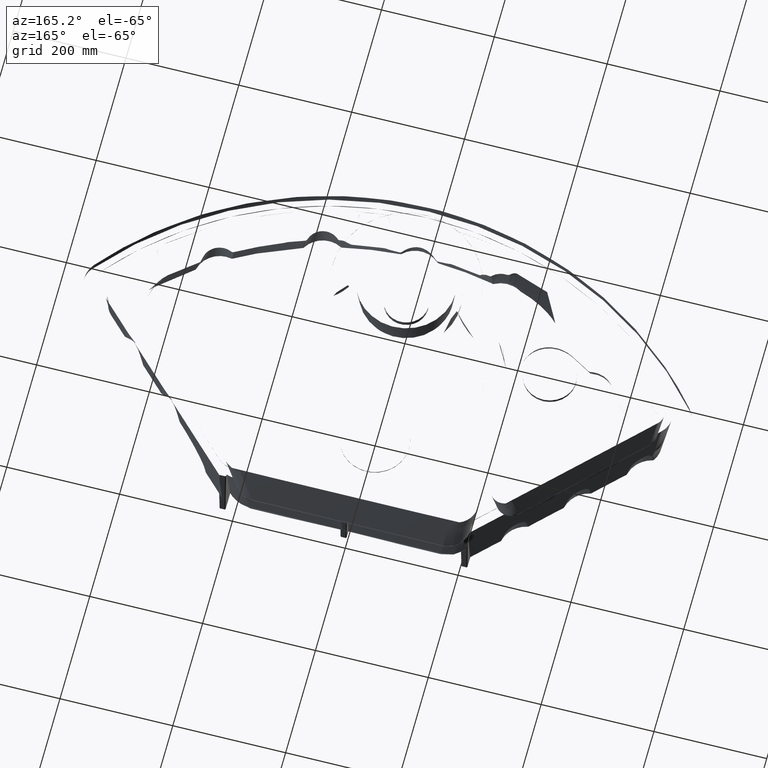
[diagram: clean part render]
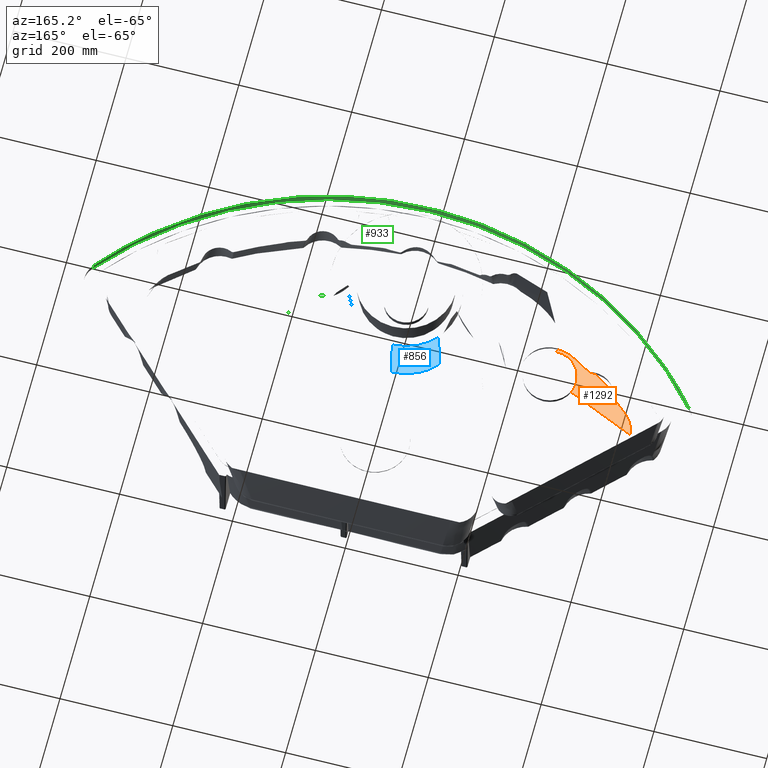
[diagram: same view with three faces highlighted in distinct colors, each labeled with its STEP entity id]
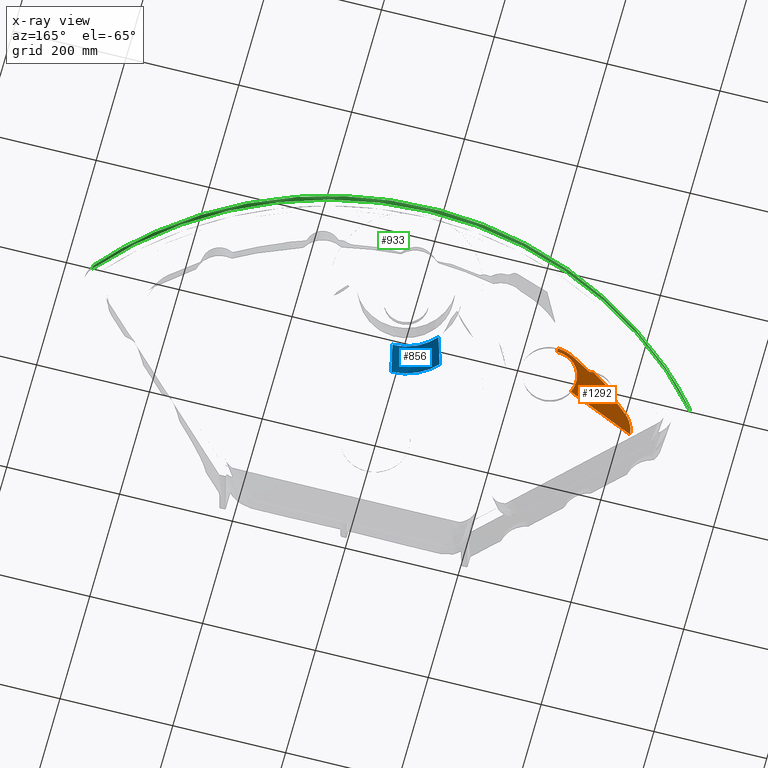
[diagram: x-ray of the same camera — body ghosted, the three highlighted faces saturated]
A machine part, auxiliary view with three faces highlighted in distinct colors.
The next image is the same camera in x-ray (body ghosted, the three faces saturated) — at least one of them is partly hidden behind the body in this view.
Their STEP definitions:

[orange] entity #1292 — the highlighted face is a freeform B-spline surface patch.
#301=B_SPLINE_SURFACE_WITH_KNOTS('',3,3,((#42504,#42505,#42506,#42507,#42508,
#42509,#42510,#42511,#42512,#42513),(#42514,#42515,#42516,#42517,#42518,
#42519,#42520,#42521,#42522,#42523),(#42524,#42525,#42526,#42527,#42528,
#42529,#42530,#42531,#42532,#42533),(#42534,#42535,#42536,#42537,#42538,
#42539,#42540,#42541,#42542,#42543),(#42544,#42545,#42546,#42547,#42548,
#42549,#42550,#42551,#42552,#42553),(#42554,#42555,#42556,#42557,#42558,
#42559,#42560,#42561,#42562,#42563),(#42564,#42565,#42566,#42567,#42568,
#42569,#42570,#42571,#42572,#42573),(#42574,#42575,#42576,#42577,#42578,
#42579,#42580,#42581,#42582,#42583),(#42584,#42585,#42586,#42587,#42588,
#42589,#42590,#42591,#42592,#42593),(#42594,#42595,#42596,#42597,#42598,
#42599,#42600,#42601,#42602,#42603),(#42604,#42605,#42606,#42607,#42608,
#42609,#42610,#42611,#42612,#42613),(#42614,#42615,#42616,#42617,#42618,
#42619,#42620,#42621,#42622,#42623),(#42624,#42625,#42626,#42627,#42628,
#42629,#42630,#42631,#42632,#42633),(#42634,#42635,#42636,#42637,#42638,
#42639,#42640,#42641,#42642,#42643),(#42644,#42645,#42646,#42647,#42648,
#42649,#42650,#42651,#42652,#42653),(#42654,#42655,#42656,#42657,#42658,
#42659,#42660,#42661,#42662,#42663),(#42664,#42665,#42666,#42667,#42668,
#42669,#42670,#42671,#42672,#42673),(#42674,#42675,#42676,#42677,#42678,
#42679,#42680,#42681,#42682,#42683),(#42684,#42685,#42686,#42687,#42688,
#42689,#42690,#42691,#42692,#42693),(#42694,#42695,#42696,#42697,#42698,
#42699,#42700,#42701,#42702,#42703),(#42704,#42705,#42706,#42707,#42708,
#42709,#42710,#42711,#42712,#42713),(#42714,#42715,#42716,#42717,#42718,
#42719,#42720,#42721,#42722,#42723),(#42724,#42725,#42726,#42727,#42728,
#42729,#42730,#42731,#42732,#42733),(#42734,#42735,#42736,#42737,#42738,
#42739,#42740,#42741,#42742,#42743),(#42744,#42745,#42746,#42747,#42748,
#42749,#42750,#42751,#42752,#42753),(#42754,#42755,#42756,#42757,#42758,
#42759,#42760,#42761,#42762,#42763),(#42764,#42765,#42766,#42767,#42768,
#42769,#42770,#42771,#42772,#42773),(#42774,#42775,#42776,#42777,#42778,
#42779,#42780,#42781,#42782,#42783),(#42784,#42785,#42786,#42787,#42788,
#42789,#42790,#42791,#42792,#42793),(#42794,#42795,#42796,#42797,#42798,
#42799,#42800,#42801,#42802,#42803),(#42804,#42805,#42806,#42807,#42808,
#42809,#42810,#42811,#42812,#42813)),.UNSPECIFIED.,.F.,.F.,.F.,(4,3,3,3,
3,3,3,3,3,3,4),(4,3,3,4),(0.,0.0625,0.125,0.25,0.375,0.5,0.75,0.875,0.9375,
0.96875,1.),(0.,0.25,0.5,1.),.UNSPECIFIED.);
#1292=ADVANCED_FACE('',(#1856),#301,.T.);
#1856=FACE_OUTER_BOUND('',#2394,.T.);
#2394=EDGE_LOOP('',(#4972,#4973,#4974,#4975,#4976,#4977,#4978,#4979,#4980,
#4981,#4982,#4983));
#4972=ORIENTED_EDGE('',*,*,#7400,.F.);
#4973=ORIENTED_EDGE('',*,*,#7401,.T.);
#4974=ORIENTED_EDGE('',*,*,#7402,.T.);
#4975=ORIENTED_EDGE('',*,*,#7403,.F.);
#4976=ORIENTED_EDGE('',*,*,#7404,.F.);
#4977=ORIENTED_EDGE('',*,*,#7405,.F.);
#4978=ORIENTED_EDGE('',*,*,#7406,.T.);
#4979=ORIENTED_EDGE('',*,*,#7407,.T.);
#4980=ORIENTED_EDGE('',*,*,#7408,.F.);
#4981=ORIENTED_EDGE('',*,*,#7380,.T.);
#4982=ORIENTED_EDGE('',*,*,#7393,.F.);
#4983=ORIENTED_EDGE('',*,*,#7409,.F.);
#5920=VERTEX_POINT('',#40452);
#5929=VERTEX_POINT('',#41948);
#5930=VERTEX_POINT('',#41955);
#5944=VERTEX_POINT('',#42436);
#5945=VERTEX_POINT('',#42437);
#5946=VERTEX_POINT('',#42455);
#5947=VERTEX_POINT('',#42460);
#5948=VERTEX_POINT('',#42465);
#5949=VERTEX_POINT('',#42470);
#5950=VERTEX_POINT('',#42475);
#5951=VERTEX_POINT('',#42480);
#5952=VERTEX_POINT('',#42485);
#7380=EDGE_CURVE('',#5930,#5929,#8678,.T.);
#7393=EDGE_CURVE('',#5920,#5929,#8691,.T.);
#7400=EDGE_CURVE('',#5944,#5945,#8696,.T.);
#7401=EDGE_CURVE('',#5944,#5946,#8697,.T.);
#7402=EDGE_CURVE('',#5946,#5947,#8698,.T.);
#7403=EDGE_CURVE('',#5948,#5947,#8699,.T.);
#7404=EDGE_CURVE('',#5949,#5948,#8700,.T.);
#7405=EDGE_CURVE('',#5950,#5949,#8701,.T.);
#7406=EDGE_CURVE('',#5950,#5951,#8702,.T.);
#7407=EDGE_CURVE('',#5951,#5952,#8703,.T.);
#7408=EDGE_CURVE('',#5930,#5952,#8704,.T.);
#7409=EDGE_CURVE('',#5945,#5920,#8705,.T.);
#8678=B_SPLINE_CURVE_WITH_KNOTS('',3,(#41949,#41950,#41951,#41952,#41953,
#41954),.UNSPECIFIED.,.F.,.F.,(4,2,4),(0.,0.5,1.),.UNSPECIFIED.);
#8691=B_SPLINE_CURVE_WITH_KNOTS('',3,(#42143,#42144,#42145,#42146,#42147,
#42148,#42149,#42150,#42151,#42152,#42153,#42154,#42155,#42156,#42157,#42158,
#42159,#42160,#42161,#42162,#42163,#42164,#42165,#42166,#42167,#42168,#42169,
#42170),.UNSPECIFIED.,.F.,.F.,(4,2,2,2,2,2,1,1,2,2,2,2,2,2,4),(0.,0.125000000000173,
0.250000000000346,0.375000000000519,0.500000000000692,0.501953125000688,
0.503906250000684,0.507812500000678,0.515625000000667,0.531250000000645,
0.562500000000603,0.625000000000518,0.750000000000345,0.875000000000173,
1.),.UNSPECIFIED.);
#8696=B_SPLINE_CURVE_WITH_KNOTS('',3,(#42430,#42431,#42432,#42433,#42434,
#42435),.UNSPECIFIED.,.F.,.F.,(4,2,4),(0.,0.5,1.),.UNSPECIFIED.);
#8697=B_SPLINE_CURVE_WITH_KNOTS('',3,(#42438,#42439,#42440,#42441,#42442,
#42443,#42444,#42445,#42446,#42447,#42448,#42449,#42450,#42451,#42452,#42453,
#42454),.UNSPECIFIED.,.F.,.F.,(4,2,2,2,2,1,2,2,4),(0.,0.125000000000008,
0.250000000000016,0.375000000000024,0.43750000000003,0.468750000000032,0.484375000000032,
0.500000000000032,1.),.UNSPECIFIED.);
#8698=B_SPLINE_CURVE_WITH_KNOTS('',3,(#42456,#42457,#42458,#42459),.UNSPECIFIED.,
 .F.,.F.,(4,4),(0.,1.),.UNSPECIFIED.);
#8699=B_SPLINE_CURVE_WITH_KNOTS('',3,(#42461,#42462,#42463,#42464),.UNSPECIFIED.,
 .F.,.F.,(4,4),(0.,1.),.UNSPECIFIED.);
#8700=B_SPLINE_CURVE_WITH_KNOTS('',3,(#42466,#42467,#42468,#42469),.UNSPECIFIED.,
 .F.,.F.,(4,4),(0.,1.),.UNSPECIFIED.);
#8701=B_SPLINE_CURVE_WITH_KNOTS('',3,(#42471,#42472,#42473,#42474),.UNSPECIFIED.,
 .F.,.F.,(4,4),(0.,1.),.UNSPECIFIED.);
#8702=B_SPLINE_CURVE_WITH_KNOTS('',3,(#42476,#42477,#42478,#42479),.UNSPECIFIED.,
 .F.,.F.,(4,4),(0.,1.),.UNSPECIFIED.);
#8703=B_SPLINE_CURVE_WITH_KNOTS('',3,(#42481,#42482,#42483,#42484),.UNSPECIFIED.,
 .F.,.F.,(4,4),(0.,1.),.UNSPECIFIED.);
#8704=B_SPLINE_CURVE_WITH_KNOTS('',3,(#42486,#42487,#42488,#42489,#42490,
#42491,#42492,#42493,#42494,#42495,#42496,#42497,#42498,#42499),.UNSPECIFIED.,
 .F.,.F.,(4,2,2,2,2,2,4),(0.,0.250000000000006,0.375000000000009,0.437500000000011,
0.468750000000011,0.500000000000011,1.),.UNSPECIFIED.);
#8705=B_SPLINE_CURVE_WITH_KNOTS('',3,(#42500,#42501,#42502,#42503),.UNSPECIFIED.,
 .F.,.F.,(4,4),(0.,1.),.UNSPECIFIED.);
#40452=CARTESIAN_POINT('',(-265.656546483442,214.567353689977,-140.228930710284));
#41948=CARTESIAN_POINT('',(-307.789119636021,147.796596819343,-140.214641777807));
#41949=CARTESIAN_POINT('',(-427.679678508203,92.4015824124142,-133.746235387042));
#41950=CARTESIAN_POINT('',(-407.685713559118,101.607568812966,-134.824108262825));
#41951=CARTESIAN_POINT('',(-387.692212600059,110.814560843453,-135.902008381039));
#41952=CARTESIAN_POINT('',(-347.717292309931,129.254774588015,-138.058137880918));
#41953=CARTESIAN_POINT('',(-327.727829227723,138.470460423162,-139.136767495024));
#41954=CARTESIAN_POINT('',(-307.789279244703,147.796931640055,-140.214641957729));
#41955=CARTESIAN_POINT('',(-427.679706867181,92.4013015024234,-133.74622416294));
#42143=CARTESIAN_POINT('',(-265.658970892072,214.567354514697,-140.228926044413));
#42144=CARTESIAN_POINT('',(-273.095672421104,214.565957397353,-140.22308957368));
#42145=CARTESIAN_POINT('',(-279.572929376068,212.80357332363,-140.21798290712));
#42146=CARTESIAN_POINT('',(-289.935644756436,208.155223753842,-140.209229182343));
#42147=CARTESIAN_POINT('',(-293.862107017241,205.284167229117,-140.205582124128));
#42148=CARTESIAN_POINT('',(-299.705474323629,200.054973035898,-140.199747616041));
#42149=CARTESIAN_POINT('',(-301.646474109606,197.687992286876,-140.19756016617));
#42150=CARTESIAN_POINT('',(-304.248039492136,194.232511104114,-140.194644874772));
#42151=CARTESIAN_POINT('',(-304.918026178757,193.133975846683,-140.193917033246));
#42152=CARTESIAN_POINT('',(-305.137205329729,192.786469795428,-140.193919026558));
#42153=CARTESIAN_POINT('',(-305.180848986335,192.717156273499,-140.193919672876));
#42154=CARTESIAN_POINT('',(-305.227919164356,192.642054793045,-140.193921098589));
#42155=CARTESIAN_POINT('',(-305.298577907717,192.528960409569,-140.193923985884));
#42156=CARTESIAN_POINT('',(-305.463800328891,192.261968921837,-140.193935963996));
#42157=CARTESIAN_POINT('',(-305.605945946599,192.027764618078,-140.193955215674));
#42158=CARTESIAN_POINT('',(-305.890727211604,191.552132279269,-140.194005698664));
#42159=CARTESIAN_POINT('',(-306.081237207875,191.225411606637,-140.194055326836));
#42160=CARTESIAN_POINT('',(-306.652953001055,190.215702678613,-140.194252129885));
#42161=CARTESIAN_POINT('',(-307.034386461356,189.503149560129,-140.194447223296));
#42162=CARTESIAN_POINT('',(-308.163850441411,187.242595574797,-140.195224177665));
#42163=CARTESIAN_POINT('',(-308.897567443529,185.57113379341,-140.19599771276));
#42164=CARTESIAN_POINT('',(-310.892297079537,180.040469756275,-140.19908501459));
#42165=CARTESIAN_POINT('',(-311.955076512676,175.648720726112,-140.20216547787));
#42166=CARTESIAN_POINT('',(-312.547172709725,165.6260666913,-140.21037092855));
#42167=CARTESIAN_POINT('',(-312.011179398135,161.158217429095,-140.213104703459));
#42168=CARTESIAN_POINT('',(-310.239737009565,153.520974932306,-140.215895954966));
#42169=CARTESIAN_POINT('',(-309.008147161568,150.353864468894,-140.215943164471));
#42170=CARTESIAN_POINT('',(-307.789279244703,147.796931640055,-140.214641957729));
#42430=CARTESIAN_POINT('',(-292.391774514897,213.382670713023,-139.840785037567));
#42431=CARTESIAN_POINT('',(-288.977732035672,215.255028945492,-139.871547226263));
#42432=CARTESIAN_POINT('',(-285.066743069542,217.031216930924,-139.900263105513));
#42433=CARTESIAN_POINT('',(-276.172888910149,219.815955182479,-139.952877240151));
#42434=CARTESIAN_POINT('',(-271.226786216189,220.840694112957,-139.978901155117));
#42435=CARTESIAN_POINT('',(-265.713737075874,221.093014346736,-139.995398371725));
#42436=CARTESIAN_POINT('',(-292.391775222417,213.382673724984,-139.840784866741));
#42437=CARTESIAN_POINT('',(-265.713737051134,221.093014347869,-139.995398371799));
#42438=CARTESIAN_POINT('',(-292.391775929938,213.382676736946,-139.840784695915));
#42439=CARTESIAN_POINT('',(-293.960998600307,212.522168011987,-139.82664050304));
#42440=CARTESIAN_POINT('',(-295.478279316929,211.680513636874,-139.808263562284));
#42441=CARTESIAN_POINT('',(-298.434207778752,210.020897342974,-139.763851185516));
#42442=CARTESIAN_POINT('',(-299.822188163552,209.232040080923,-139.738885936136));
#42443=CARTESIAN_POINT('',(-302.757093871433,207.547570499227,-139.677747998334));
#42444=CARTESIAN_POINT('',(-304.214098336805,206.70260392894,-139.643189859169));
#42445=CARTESIAN_POINT('',(-306.407793477134,205.415658048812,-139.586056439797));
#42446=CARTESIAN_POINT('',(-307.14040302348,204.983452146855,-139.566126967906));
#42447=CARTESIAN_POINT('',(-308.244455784282,204.328584546653,-139.534966389827));
#42448=CARTESIAN_POINT('',(-308.797767460521,203.999512949842,-139.519069217882));
#42449=CARTESIAN_POINT('',(-309.35358740059,203.66767780391,-139.502705471803));
#42450=CARTESIAN_POINT('',(-309.724756049788,203.445807207412,-139.49169340395));
#42451=CARTESIAN_POINT('',(-309.935575625561,203.319612010305,-139.485385176497));
#42452=CARTESIAN_POINT('',(-315.212688182225,200.157466324669,-139.326470495381));
#42453=CARTESIAN_POINT('',(-320.75079870029,196.742279845687,-139.131583935426));
#42454=CARTESIAN_POINT('',(-327.39612238466,192.439981358982,-138.888618166196));
#42455=CARTESIAN_POINT('',(-327.396121103124,192.439979372288,-138.88861829435));
#42456=CARTESIAN_POINT('',(-327.396119821589,192.439977385594,-138.888618422505));
#42457=CARTESIAN_POINT('',(-328.438594789405,191.765117618662,-138.850501900075));
#42458=CARTESIAN_POINT('',(-329.687099639624,191.508962209833,-138.788690339611));
#42459=CARTESIAN_POINT('',(-330.927969621622,191.733785039025,-138.714822881204));
#42460=CARTESIAN_POINT('',(-330.937461599081,191.735544570743,-138.714256758888));
#42461=CARTESIAN_POINT('',(-336.413874828756,192.386544405647,-138.401614055303));
#42462=CARTESIAN_POINT('',(-334.524744620312,192.286679267034,-138.504867487854));
#42463=CARTESIAN_POINT('',(-332.705839356114,192.063201292498,-138.608795917682));
#42464=CARTESIAN_POINT('',(-330.94695357654,191.737304102462,-138.713690636573));
#42465=CARTESIAN_POINT('',(-336.413950603607,192.386074631407,-138.40154160622));
#42466=CARTESIAN_POINT('',(-379.126113700221,161.817475962388,-136.72360288688));
#42467=CARTESIAN_POINT('',(-365.330575444873,172.600257355997,-137.319128022545));
#42468=CARTESIAN_POINT('',(-351.072287086248,182.790878334201,-137.881396292931));
#42469=CARTESIAN_POINT('',(-336.414026353386,192.385604855837,-138.401469158508));
#42470=CARTESIAN_POINT('',(-379.120783906457,161.819602893532,-136.72419931194));
#42471=CARTESIAN_POINT('',(-380.35806257731,155.69596588517,-136.715850174097));
#42472=CARTESIAN_POINT('',(-380.097058848854,157.783056418479,-136.713985343419));
#42473=CARTESIAN_POINT('',(-379.675634233926,159.833544565517,-136.716933627761));
#42474=CARTESIAN_POINT('',(-379.115454119142,161.821729801704,-136.724795736913));
#42475=CARTESIAN_POINT('',(-380.35810440525,155.695971121641,-136.715847991195));
#42476=CARTESIAN_POINT('',(-380.35814623319,155.695976358112,-136.715845808293));
#42477=CARTESIAN_POINT('',(-380.515332389839,154.43492618979,-136.716999041399));
#42478=CARTESIAN_POINT('',(-381.139727077571,153.281482776126,-136.691954532315));
#42479=CARTESIAN_POINT('',(-382.122071517452,152.475375777453,-136.646302067384));
#42480=CARTESIAN_POINT('',(-382.122075021175,152.475373057245,-136.646301903701));
#42481=CARTESIAN_POINT('',(-382.122078524898,152.475370337036,-136.646301740019));
#42482=CARTESIAN_POINT('',(-389.952269349395,146.050004373954,-136.282409217721));
#42483=CARTESIAN_POINT('',(-398.959757052675,138.350512897025,-135.844226327784));
#42484=CARTESIAN_POINT('',(-409.252091217321,128.814955611901,-135.285824037037));
#42485=CARTESIAN_POINT('',(-409.25209433133,128.814958980606,-135.285823908639));
#42486=CARTESIAN_POINT('',(-427.679678491276,92.4015825800626,-133.746235393738));
#42487=CARTESIAN_POINT('',(-427.308744078451,96.0754852480829,-133.89297777786));
#42488=CARTESIAN_POINT('',(-426.572837840615,99.5946789123415,-134.024436876417));
#42489=CARTESIAN_POINT('',(-425.064866036599,104.579670676074,-134.211470067665));
#42490=CARTESIAN_POINT('',(-424.494521226913,106.193102369802,-134.272077058897));
#42491=CARTESIAN_POINT('',(-423.549734784895,108.535728632397,-134.361407313702));
#42492=CARTESIAN_POINT('',(-423.219898623454,109.303685824348,-134.390918735408));
#42493=CARTESIAN_POINT('',(-422.704095838477,110.435696314322,-134.43490009806));
#42494=CARTESIAN_POINT('',(-422.528652070348,110.809713131779,-134.449512818142));
#42495=CARTESIAN_POINT('',(-422.170947494482,111.551025760799,-134.478660251197));
#42496=CARTESIAN_POINT('',(-422.003132617614,111.889994031698,-134.492065901161));
#42497=CARTESIAN_POINT('',(-418.602796475161,118.557832169887,-134.757828606388));
#42498=CARTESIAN_POINT('',(-414.329862966932,124.110336146363,-135.010332303186));
#42499=CARTESIAN_POINT('',(-409.25209744534,128.814962349312,-135.285823780241));
#42500=CARTESIAN_POINT('',(-265.713737026395,221.093014349001,-139.995398371873));
#42501=CARTESIAN_POINT('',(-265.69759141405,218.917795306555,-140.073266159773));
#42502=CARTESIAN_POINT('',(-265.6794817824,216.742575646844,-140.151116687937));
#42503=CARTESIAN_POINT('',(-265.658970892072,214.567354514697,-140.228926044413));
#42504=CARTESIAN_POINT('',(-306.949902319907,148.189669087443,-140.26001959409));
#42505=CARTESIAN_POINT('',(-317.104586999545,143.437027684794,-139.711033364475));
#42506=CARTESIAN_POINT('',(-327.275725405787,138.720203721556,-139.161678298654));
#42507=CARTESIAN_POINT('',(-337.450264199471,134.010756293978,-138.612465724299));
#42508=CARTESIAN_POINT('',(-347.624802993155,129.301308866401,-138.063253149943));
#42509=CARTESIAN_POINT('',(-357.803909635816,124.601786875067,-137.514092874263));
#42510=CARTESIAN_POINT('',(-367.984552282366,119.905598772589,-136.964981587929));
#42511=CARTESIAN_POINT('',(-388.345837575465,110.513222567633,-135.866759015259));
#42512=CARTESIAN_POINT('',(-408.713316364301,101.134292588771,-134.76870603498));
#42513=CARTESIAN_POINT('',(-429.081212569177,91.756267133492,-133.670678963128));
#42514=CARTESIAN_POINT('',(-307.763460173631,149.930168626321,-140.260797322433));
#42515=CARTESIAN_POINT('',(-317.766456086224,145.658697320075,-139.738722804236));
#42516=CARTESIAN_POINT('',(-327.776900370683,141.406533173978,-139.215967189527));
#42517=CARTESIAN_POINT('',(-337.788910725982,137.158594017953,-138.692756862719));
#42518=CARTESIAN_POINT('',(-347.800921081281,132.910654861927,-138.169546535912));
#42519=CARTESIAN_POINT('',(-357.815009094314,128.668256700495,-137.645874859941));
#42520=CARTESIAN_POINT('',(-367.829771050297,124.42780090703,-137.121921313038));
#42521=CARTESIAN_POINT('',(-387.859294962261,115.9468893201,-136.074014219232));
#42522=CARTESIAN_POINT('',(-407.891528030432,107.473785285548,-135.024977423806));
#42523=CARTESIAN_POINT('',(-427.923785944923,99.0014895246245,-133.976205798523));
#42524=CARTESIAN_POINT('',(-308.474098562617,151.717571607296,-140.261109206424));
#42525=CARTESIAN_POINT('',(-318.289070731594,147.909594569257,-139.758785291864));
#42526=CARTESIAN_POINT('',(-328.106045804333,144.108256813993,-139.255749127726));
#42527=CARTESIAN_POINT('',(-337.923404436287,140.308476799225,-138.752178540044));
#42528=CARTESIAN_POINT('',(-347.740763068242,136.508696784458,-138.248607952363));
#42529=CARTESIAN_POINT('',(-357.558651562039,132.710928461183,-137.744506695501));
#42530=CARTESIAN_POINT('',(-367.376703726557,128.913982447268,-137.240069059685));
#42531=CARTESIAN_POINT('',(-387.012808055593,121.320090419438,-136.231193788052));
#42532=CARTESIAN_POINT('',(-406.649573450559,113.729507110855,-135.220974355212));
#42533=CARTESIAN_POINT('',(-426.286373060427,106.139881643789,-134.210946158734));
#42534=CARTESIAN_POINT('',(-309.075994421343,153.541081434572,-140.26111964559));
#42535=CARTESIAN_POINT('',(-318.686754458547,150.18332817461,-139.774127541799));
#42536=CARTESIAN_POINT('',(-328.295860237078,146.821198411776,-139.286803187716));
#42537=CARTESIAN_POINT('',(-337.904674366009,143.458520684443,-138.799218967288));
#42538=CARTESIAN_POINT('',(-347.51348849494,140.09584295711,-138.31163474686));
#42539=CARTESIAN_POINT('',(-357.121890746764,136.732273822042,-137.823790146935));
#42540=CARTESIAN_POINT('',(-366.730208976027,133.368685282551,-137.33575728864));
#42541=CARTESIAN_POINT('',(-385.946845434554,126.64150820357,-136.35969157205));
#42542=CARTESIAN_POINT('',(-405.163140980588,119.914239785921,-135.382872722918));
#42543=CARTESIAN_POINT('',(-424.379801185632,113.188375930722,-134.405888388064));
#42544=CARTESIAN_POINT('',(-309.677890280068,155.364591261848,-140.261130084757));
#42545=CARTESIAN_POINT('',(-319.0844381855,152.457061779963,-139.789469791735));
#42546=CARTESIAN_POINT('',(-328.485674669823,149.53414000956,-139.317857247705));
#42547=CARTESIAN_POINT('',(-337.885944295731,146.60856456966,-138.846259394532));
#42548=CARTESIAN_POINT('',(-347.286213921638,143.682989129761,-138.374661541358));
#42549=CARTESIAN_POINT('',(-356.685129931488,140.753619182901,-137.903073598369));
#42550=CARTESIAN_POINT('',(-366.083714225497,137.823388117835,-137.431445517595));
#42551=CARTESIAN_POINT('',(-384.880882813515,131.962925987703,-136.488189356048));
#42552=CARTESIAN_POINT('',(-403.676708510616,126.098972460988,-135.544771090625));
#42553=CARTESIAN_POINT('',(-422.473229310837,120.236870217655,-134.600830617394));
#42554=CARTESIAN_POINT('',(-310.171184411228,157.224114405541,-140.260826514349));
#42555=CARTESIAN_POINT('',(-319.356982201905,154.755623335946,-139.799960161211));
#42556=CARTESIAN_POINT('',(-328.535411326386,152.261518517361,-139.339914540971));
#42557=CARTESIAN_POINT('',(-337.712635102583,149.762983694886,-138.880522213349));
#42558=CARTESIAN_POINT('',(-346.889858878781,147.264448872411,-138.421129885727));
#42559=CARTESIAN_POINT('',(-356.065317296758,144.759562593425,-137.962361095057));
#42560=CARTESIAN_POINT('',(-365.24042446302,142.253138303058,-137.503905179617));
#42561=CARTESIAN_POINT('',(-383.590638795545,137.240289722322,-136.586993348737));
#42562=CARTESIAN_POINT('',(-401.939419179205,132.221195939361,-135.671323831822));
#42563=CARTESIAN_POINT('',(-420.289508230945,127.204584699564,-134.754493234081));
#42564=CARTESIAN_POINT('',(-310.550372475516,159.107777821916,-140.260250024323));
#42565=CARTESIAN_POINT('',(-319.50707341039,157.068034692399,-139.807069446446));
#42566=CARTESIAN_POINT('',(-328.455919873089,154.993825294883,-139.35584479309));
#42567=CARTESIAN_POINT('',(-337.403705464656,152.913981643793,-138.90617205301));
#42568=CARTESIAN_POINT('',(-346.351491056222,150.834137992703,-138.456499312929));
#42569=CARTESIAN_POINT('',(-355.297584045015,148.745975453563,-138.008320711702));
#42570=CARTESIAN_POINT('',(-364.243502068915,146.655858646102,-137.560958134621));
#42571=CARTESIAN_POINT('',(-382.135338116715,142.47562503118,-136.666232980459));
#42572=CARTESIAN_POINT('',(-400.026435207902,138.287411502167,-135.774755984561));
#42573=CARTESIAN_POINT('',(-417.919668952053,134.102533810099,-134.881251915946));
#42574=CARTESIAN_POINT('',(-311.308748604093,162.875104654665,-140.25909704427));
#42575=CARTESIAN_POINT('',(-319.807255827361,161.692857405304,-139.821288016916));
#42576=CARTESIAN_POINT('',(-328.296936966494,160.458438849925,-139.387705297328));
#42577=CARTESIAN_POINT('',(-336.7858461888,159.215977541606,-138.957471732331));
#42578=CARTESIAN_POINT('',(-345.274755411106,157.973516233287,-138.527238167334));
#42579=CARTESIAN_POINT('',(-353.762117541531,156.718801173838,-138.100239944992));
#42580=CARTESIAN_POINT('',(-362.249657280707,155.46129933219,-137.675064044629));
#42581=CARTESIAN_POINT('',(-379.224736759057,152.946295648896,-136.824712243903));
#42582=CARTESIAN_POINT('',(-396.200467265296,150.41984262778,-135.981620290037));
#42583=CARTESIAN_POINT('',(-413.179990394269,147.898432031169,-135.134769279677));
#42584=CARTESIAN_POINT('',(-311.611394288122,166.737858092133,-140.25680885522));
#42585=CARTESIAN_POINT('',(-319.620818441008,166.378815681681,-139.822173390794));
#42586=CARTESIAN_POINT('',(-327.626458060514,165.952017141603,-139.395451939536));
#42587=CARTESIAN_POINT('',(-335.633013101677,165.516480866211,-138.974928549297));
#42588=CARTESIAN_POINT('',(-343.639568142841,165.080944590819,-138.554405159057));
#42589=CARTESIAN_POINT('',(-351.646520671567,164.630708938042,-138.139887912753));
#42590=CARTESIAN_POINT('',(-359.654712060432,164.177575910324,-137.728800763046));
#42591=CARTESIAN_POINT('',(-375.671094838161,163.271309854887,-136.906626463632));
#42592=CARTESIAN_POINT('',(-391.69237368988,162.352896675648,-136.098132607254));
#42593=CARTESIAN_POINT('',(-407.71985782883,161.441818102058,-135.283237163077));
#42594=CARTESIAN_POINT('',(-311.435547644953,170.587896089069,-140.253673047519));
#42595=CARTESIAN_POINT('',(-318.956111991262,171.027166893371,-139.816194574905));
#42596=CARTESIAN_POINT('',(-326.482430779946,171.391377474654,-139.390948503912));
#42597=CARTESIAN_POINT('',(-334.011556543279,171.74774661274,-138.975115267348));
#42598=CARTESIAN_POINT('',(-341.540682306612,172.104115750827,-138.559282030784));
#42599=CARTESIAN_POINT('',(-349.072914826368,172.445508774925,-138.152622769144));
#42600=CARTESIAN_POINT('',(-356.607649108043,172.784547545949,-137.751254976832));
#42601=CARTESIAN_POINT('',(-371.677117671393,173.462625087998,-136.948519392208));
#42602=CARTESIAN_POINT('',(-386.756623935904,174.130532426058,-136.166914443046));
#42603=CARTESIAN_POINT('',(-401.84494300413,174.808080942133,-135.375879504245));
#42604=CARTESIAN_POINT('',(-311.259701001785,174.437934086004,-140.250537239818));
#42605=CARTESIAN_POINT('',(-318.291405541516,175.675518105061,-139.810215759016));
#42606=CARTESIAN_POINT('',(-325.338403499377,176.830737807704,-139.386445068288));
#42607=CARTESIAN_POINT('',(-332.39009998488,177.97901235927,-138.975301985399));
#42608=CARTESIAN_POINT('',(-339.441796470383,179.127286910835,-138.564158902511));
#42609=CARTESIAN_POINT('',(-346.49930898117,180.260308611807,-138.165357625536));
#42610=CARTESIAN_POINT('',(-353.560586155655,181.391519181574,-137.773709190618));
#42611=CARTESIAN_POINT('',(-367.683140504626,183.653940321109,-136.990412320783));
#42612=CARTESIAN_POINT('',(-381.820874181927,185.908168176468,-136.235696278839));
#42613=CARTESIAN_POINT('',(-395.97002817943,188.174343782208,-135.468521845413));
#42614=CARTESIAN_POINT('',(-310.604408071102,178.274021444057,-140.246496954474));
#42615=CARTESIAN_POINT('',(-317.146487694385,180.285134572857,-139.797240287257));
#42616=CARTESIAN_POINT('',(-323.718048769262,182.215391706019,-139.369378568161));
#42617=CARTESIAN_POINT('',(-330.296279893378,184.140906106732,-138.957731630083));
#42618=CARTESIAN_POINT('',(-336.874511017493,186.066420507445,-138.546084692005));
#42619=CARTESIAN_POINT('',(-343.461983631723,187.978455834577,-138.150338937522));
#42620=CARTESIAN_POINT('',(-350.054666274901,189.88979176009,-137.763866900528));
#42621=CARTESIAN_POINT('',(-363.240031561256,193.712463611115,-136.99092282654));
#42622=CARTESIAN_POINT('',(-376.446544772127,197.531290523156,-136.255057261066));
#42623=CARTESIAN_POINT('',(-389.667280902575,201.364310296859,-135.503324255301));
#42624=CARTESIAN_POINT('',(-309.464375557766,181.970099536491,-140.24319444462));
#42625=CARTESIAN_POINT('',(-315.540940710497,184.743216977298,-139.782161623651));
#42626=CARTESIAN_POINT('',(-321.654535624009,187.447687545186,-139.347351459195));
#42627=CARTESIAN_POINT('',(-327.776082275652,190.149645968799,-138.932215434644));
#42628=CARTESIAN_POINT('',(-333.897628927295,192.851604392412,-138.517079410093));
#42629=CARTESIAN_POINT('',(-340.03046741151,195.543357234296,-138.121321716518));
#42630=CARTESIAN_POINT('',(-346.16958554861,198.235733470347,-137.736927317426));
#42631=CARTESIAN_POINT('',(-358.447821822809,203.620485942449,-136.968138519243));
#42632=CARTESIAN_POINT('',(-370.751583986292,209.006799775365,-136.244804171856));
#42633=CARTESIAN_POINT('',(-383.07232426158,214.409070008941,-135.502322890642));
#42634=CARTESIAN_POINT('',(-308.324343044431,185.666177628925,-140.239891934765));
#42635=CARTESIAN_POINT('',(-313.935393726609,189.201299381738,-139.767082960045));
#42636=CARTESIAN_POINT('',(-319.591022478756,192.679983384353,-139.325324350229));
#42637=CARTESIAN_POINT('',(-325.255884657926,196.158385830866,-138.906699239205));
#42638=CARTESIAN_POINT('',(-330.920746837096,199.636788277379,-138.488074128181));
#42639=CARTESIAN_POINT('',(-336.598951191297,203.108258634015,-138.092304495513));
#42640=CARTESIAN_POINT('',(-342.284504822318,206.581675180604,-137.709987734324));
#42641=CARTESIAN_POINT('',(-353.655612084361,213.528508273782,-136.945354211946));
#42642=CARTESIAN_POINT('',(-365.056623200458,220.482309027574,-136.234551082645));
#42643=CARTESIAN_POINT('',(-376.477367620586,227.453829721022,-135.501321525983));
#42644=CARTESIAN_POINT('',(-306.698026914301,189.217895407,-140.237575165044));
#42645=CARTESIAN_POINT('',(-311.868578261879,193.506039113979,-139.74994589503));
#42646=CARTESIAN_POINT('',(-317.08305392548,197.758800712159,-139.298263645565));
#42647=CARTESIAN_POINT('',(-322.307569241653,202.013412047967,-138.873063457129));
#42648=CARTESIAN_POINT('',(-327.532084557826,206.268023383774,-138.447863268693));
#42649=CARTESIAN_POINT('',(-332.770527622077,210.520139952344,-138.048934657569));
#42650=CARTESIAN_POINT('',(-338.017028493337,214.775657117667,-137.665521783369));
#42651=CARTESIAN_POINT('',(-348.510030235857,223.286691448313,-136.898696034968));
#42652=CARTESIAN_POINT('',(-359.035737498395,231.810806312246,-136.193974586131));
#42653=CARTESIAN_POINT('',(-369.583918395857,240.353914645982,-135.463674150782));
#42654=CARTESIAN_POINT('',(-304.630543285259,192.4940851267,-140.237526473327));
#42655=CARTESIAN_POINT('',(-309.392780826436,197.550293043684,-139.734330181712));
#42656=CARTESIAN_POINT('',(-314.187138372592,202.589419143124,-139.271555937797));
#42657=CARTESIAN_POINT('',(-318.991102561535,207.632441772391,-138.838096930078));
#42658=CARTESIAN_POINT('',(-323.795066750477,212.675464401658,-138.40463792236));
#42659=CARTESIAN_POINT('',(-328.611167741681,217.719944384038,-138.000372245135));
#42660=CARTESIAN_POINT('',(-333.435350600859,222.769062927016,-137.613356310651));
#42661=CARTESIAN_POINT('',(-343.083716319215,232.867300012971,-136.839324441681));
#42662=CARTESIAN_POINT('',(-352.764713087809,242.983805980876,-136.134359764576));
#42663=CARTESIAN_POINT('',(-362.47074752643,253.119996654468,-135.401260620123));
#42664=CARTESIAN_POINT('',(-300.495576027175,199.046464566098,-140.237429089892));
#42665=CARTESIAN_POINT('',(-304.44118595555,205.638800903094,-139.703098755075));
#42666=CARTESIAN_POINT('',(-308.395307266817,212.250656005055,-139.218140522261));
#42667=CARTESIAN_POINT('',(-312.358169201297,218.870501221241,-138.768163875977));
#42668=CARTESIAN_POINT('',(-316.321031135778,225.490346437427,-138.318187229692));
#42669=CARTESIAN_POINT('',(-320.292447980889,232.119553247426,-137.903247420268));
#42670=CARTESIAN_POINT('',(-324.271994815903,238.755874545713,-137.509025365214));
#42671=CARTESIAN_POINT('',(-332.23108848593,252.028517142288,-136.720581255106));
#42672=CARTESIAN_POINT('',(-340.222664266637,265.329805318137,-136.015130121467));
#42673=CARTESIAN_POINT('',(-348.244405787575,278.65216067144,-135.276433558806));
#42674=CARTESIAN_POINT('',(-294.594382268713,204.446503069579,-140.245950744011));
#42675=CARTESIAN_POINT('',(-297.840449356093,212.656074066777,-139.678291276024));
#42676=CARTESIAN_POINT('',(-301.043223046461,220.895833509854,-139.166290171489));
#42677=CARTESIAN_POINT('',(-304.246428987791,229.147238926971,-138.693174832125));
#42678=CARTESIAN_POINT('',(-307.44963492912,237.398644344089,-138.220059492761));
#42679=CARTESIAN_POINT('',(-310.649085495922,245.663273463712,-137.785879205648));
#42680=CARTESIAN_POINT('',(-313.853844892197,253.936274310563,-137.374585027054));
#42681=CARTESIAN_POINT('',(-320.263363684747,270.482276004266,-136.551996669866));
#42682=CARTESIAN_POINT('',(-326.693717714854,287.061846175283,-135.821112938052));
#42683=CARTESIAN_POINT('',(-333.158953364424,303.661569529072,-135.054255286265));
#42684=CARTESIAN_POINT('',(-287.791302221779,208.069075616367,-140.252823275349));
#42685=CARTESIAN_POINT('',(-290.348869446155,218.023916786652,-139.673742775336));
#42686=CARTESIAN_POINT('',(-292.837388308378,228.004984453415,-139.144967336228));
#42687=CARTESIAN_POINT('',(-295.315957675183,237.997020182913,-138.652181932552));
#42688=CARTESIAN_POINT('',(-297.794527041988,247.989055912411,-138.159396528877));
#42689=CARTESIAN_POINT('',(-300.258523210797,257.993190393224,-137.702426045997));
#42690=CARTESIAN_POINT('',(-302.723550972143,268.004876829163,-137.266474159082));
#42691=CARTESIAN_POINT('',(-307.653606494834,288.028249701041,-136.394570385253));
#42692=CARTESIAN_POINT('',(-312.588022889361,308.081776160713,-135.606773422819));
#42693=CARTESIAN_POINT('',(-317.558138087373,328.152250801027,-134.786359004058));
#42694=CARTESIAN_POINT('',(-284.389762198311,209.88036188976,-140.256259541018));
#42695=CARTESIAN_POINT('',(-286.603079491186,220.707838146589,-139.671468524992));
#42696=CARTESIAN_POINT('',(-288.734470939336,231.559559925196,-139.134305918598));
#42697=CARTESIAN_POINT('',(-290.850722018879,242.421910810884,-138.631685482766));
#42698=CARTESIAN_POINT('',(-292.966973098421,253.284261696572,-138.129065046934));
#42699=CARTESIAN_POINT('',(-295.063242068234,264.15814885798,-137.660699466172));
#42700=CARTESIAN_POINT('',(-297.158404012115,275.039178088463,-137.212418725097));
#42701=CARTESIAN_POINT('',(-301.348727899878,296.801236549428,-136.315857242947));
#42702=CARTESIAN_POINT('',(-305.535175476615,318.591741153429,-135.499603665202));
#42703=CARTESIAN_POINT('',(-309.757730448847,340.397591437004,-134.652410862955));
#42704=CARTESIAN_POINT('',(-280.767240619894,211.256610311481,-140.259354911738));
#42705=CARTESIAN_POINT('',(-282.633433820578,222.984012434405,-139.674412835999));
#42706=CARTESIAN_POINT('',(-284.409379071184,234.731432980672,-139.131750698364));
#42707=CARTESIAN_POINT('',(-286.1653772577,246.488134561101,-138.62041219214));
#42708=CARTESIAN_POINT('',(-287.921375444217,258.24483614153,-138.109073685916));
#42709=CARTESIAN_POINT('',(-289.652719093926,270.011474798365,-137.628657833063));
#42710=CARTESIAN_POINT('',(-291.380698225381,281.784339206953,-137.166372758978));
#42711=CARTESIAN_POINT('',(-294.836656488291,305.330068024129,-136.241802610809));
#42712=CARTESIAN_POINT('',(-298.280106979281,328.900548842948,-135.389635804714));
#42713=CARTESIAN_POINT('',(-301.758862708447,352.484215157472,-134.509758508263));
#42714=CARTESIAN_POINT('',(-277.037883911658,212.164197146424,-140.261911980427));
#42715=CARTESIAN_POINT('',(-278.527225549485,224.804251695573,-139.682772832019));
#42716=CARTESIAN_POINT('',(-279.919246196499,237.459786438406,-139.137371992724));
#42717=CARTESIAN_POINT('',(-281.287582404956,250.122680552541,-138.617718935899));
#42718=CARTESIAN_POINT('',(-282.655918613412,262.785574666676,-138.098065879073));
#42719=CARTESIAN_POINT('',(-283.995857802912,275.456300803663,-137.603665568142));
#42720=CARTESIAN_POINT('',(-285.33054507781,288.131954860651,-137.124053153254));
#42721=CARTESIAN_POINT('',(-287.999919627605,313.483262974627,-136.164828323477));
#42722=CARTESIAN_POINT('',(-290.649502411566,338.85414737293,-135.264556364513));
#42723=CARTESIAN_POINT('',(-293.333045658127,364.235371959076,-134.341771167541));
#42724=CARTESIAN_POINT('',(-275.17320555754,212.617990563896,-140.263190514772));
#42725=CARTESIAN_POINT('',(-276.474121413938,225.714371326158,-139.686952830028));
#42726=CARTESIAN_POINT('',(-277.674179759156,238.823963167274,-139.140182639905));
#42727=CARTESIAN_POINT('',(-278.848684978583,251.939953548261,-138.616372307778));
#42728=CARTESIAN_POINT('',(-280.02319019801,265.055943929249,-138.092561975652));
#42729=CARTESIAN_POINT('',(-281.167427157405,278.178713806313,-137.591169435682));
#42730=CARTESIAN_POINT('',(-282.305468504024,291.305762687501,-137.102893350392));
#42731=CARTESIAN_POINT('',(-284.581551197263,317.559860449876,-136.126341179811));
#42732=CARTESIAN_POINT('',(-286.834200127708,343.830946637921,-135.202016644412));
#42733=CARTESIAN_POINT('',(-289.120137132967,370.110950359878,-134.257777497181));
#42734=CARTESIAN_POINT('',(-273.282125715466,212.954449709319,-140.264342173901));
#42735=CARTESIAN_POINT('',(-274.386616137971,226.510641676223,-139.692497290103));
#42736=CARTESIAN_POINT('',(-275.387205460993,240.077627030562,-139.145068765405));
#42737=CARTESIAN_POINT('',(-276.360767280891,253.649886182763,-138.617217596364));
#42738=CARTESIAN_POINT('',(-277.334329100789,267.222145334964,-138.089366427324));
#42739=CARTESIAN_POINT('',(-278.276105366732,280.799981251361,-137.580510713468));
#42740=CARTESIAN_POINT('',(-279.210895321482,294.381343909556,-137.082749297047));
#42741=CARTESIAN_POINT('',(-281.08047523098,321.544069225944,-136.087226464204));
#42742=CARTESIAN_POINT('',(-282.923543491541,348.720793586671,-135.135808057869));
#42743=CARTESIAN_POINT('',(-284.799058807025,375.904849309693,-134.16757263602));
#42744=CARTESIAN_POINT('',(-271.37914053875,213.172962578919,-140.265364475806));
#42745=CARTESIAN_POINT('',(-272.269352627313,227.185895305567,-139.698966307867));
#42746=CARTESIAN_POINT('',(-273.052789566929,241.207064956929,-139.151109628703));
#42747=CARTESIAN_POINT('',(-273.808433865496,255.232270574038,-138.618773119365));
#42748=CARTESIAN_POINT('',(-274.564078164064,269.257476191146,-138.086436610028));
#42749=CARTESIAN_POINT('',(-275.286993812216,283.286945638103,-137.569008621889));
#42750=CARTESIAN_POINT('',(-276.002484324855,297.319110202225,-137.060247117156));
#42751=CARTESIAN_POINT('',(-277.433465350132,325.38343933047,-136.042724107689));
#42752=CARTESIAN_POINT('',(-278.836163005555,353.458465510592,-135.059575324242));
#42753=CARTESIAN_POINT('',(-280.27053508121,381.5390838241,-134.063258282236));
#42754=CARTESIAN_POINT('',(-270.427647950392,213.282219013719,-140.265875626759));
#42755=CARTESIAN_POINT('',(-271.210720871985,227.523522120239,-139.702200816749));
#42756=CARTESIAN_POINT('',(-271.885581619897,241.771783920112,-139.154130060352));
#42757=CARTESIAN_POINT('',(-272.532267157799,256.023462769675,-138.619550880866));
#42758=CARTESIAN_POINT('',(-273.178952695701,270.275141619238,-138.08497170138));
#42759=CARTESIAN_POINT('',(-273.792438034958,284.530427831474,-137.563257576099));
#42760=CARTESIAN_POINT('',(-274.398278826542,298.78799334856,-137.04899602721));
#42761=CARTESIAN_POINT('',(-275.609960409708,327.303124382733,-136.020472929432));
#42762=CARTESIAN_POINT('',(-276.792472762562,355.827301472553,-135.021458957428));
#42763=CARTESIAN_POINT('',(-278.006273218303,384.356201081303,-134.011101105345));
#42764=CARTESIAN_POINT('',(-269.473172518666,213.361994943153,-140.266354071388));
#42765=CARTESIAN_POINT('',(-270.143622539014,227.830845296294,-139.705658877847));
#42766=CARTESIAN_POINT('',(-270.704637106333,242.305331644018,-139.15744936998));
#42767=CARTESIAN_POINT('',(-271.237454276397,256.782578718435,-138.620523634049));
#42768=CARTESIAN_POINT('',(-271.770271446461,271.259825792853,-138.083597898117));
#42769=CARTESIAN_POINT('',(-272.269722577953,285.739988054498,-137.55732128809));
#42770=CARTESIAN_POINT('',(-272.761484921452,300.221989875301,-137.037176229733));
#42771=CARTESIAN_POINT('',(-273.745009608448,329.185993516905,-135.996886113018));
#42772=CARTESIAN_POINT('',(-274.699132917632,358.15729877804,-134.980819533652));
#42773=CARTESIAN_POINT('',(-275.684180388187,387.132419263918,-133.955379390942));
#42774=CARTESIAN_POINT('',(-268.517487820158,213.412329046476,-140.266794479385));
#42775=CARTESIAN_POINT('',(-269.067276395995,228.105330337354,-139.709126377984));
#42776=CARTESIAN_POINT('',(-269.506552922647,242.802593783914,-139.160625077205));
#42777=CARTESIAN_POINT('',(-269.917962714901,257.501945771956,-138.621012539377));
#42778=CARTESIAN_POINT('',(-270.329372507154,272.201297759998,-138.081400001549));
#42779=CARTESIAN_POINT('',(-270.707538148228,286.902853281997,-137.550039772417));
#42780=CARTESIAN_POINT('',(-271.07814014514,301.605796130951,-137.023379376095));
#42781=CARTESIAN_POINT('',(-271.819344138966,331.011681828858,-135.970058583453));
#42782=CARTESIAN_POINT('',(-272.531547696159,360.423073700708,-134.93524096833));
#42783=CARTESIAN_POINT('',(-273.274395694796,389.837342419947,-133.893168505627));
#42784=CARTESIAN_POINT('',(-267.561803121649,213.462663149798,-140.267234887381));
#42785=CARTESIAN_POINT('',(-267.990930252976,228.379815378413,-139.71259387812));
#42786=CARTESIAN_POINT('',(-268.308468738961,243.29985592381,-139.163800784429));
#42787=CARTESIAN_POINT('',(-268.598471153404,258.221312825477,-138.621501444705));
#42788=CARTESIAN_POINT('',(-268.888473567847,273.142769727144,-138.079202104981));
#42789=CARTESIAN_POINT('',(-269.145353718502,288.065718509496,-137.542758256743));
#42790=CARTESIAN_POINT('',(-269.394795368829,302.989602386601,-137.009582522458));
#42791=CARTESIAN_POINT('',(-269.893678669484,332.837370140812,-135.943231053887));
#42792=CARTESIAN_POINT('',(-270.363962474685,362.688848623376,-134.889662403009));
#42793=CARTESIAN_POINT('',(-270.864611001405,392.542265575976,-133.830957620312));
#42794=CARTESIAN_POINT('',(-266.604912584124,213.483498883639,-140.267639548425));
#42795=CARTESIAN_POINT('',(-266.904730034891,228.622161963047,-139.716125969597));
#42796=CARTESIAN_POINT('',(-267.092134054613,243.762276280509,-139.166979595371));
#42797=CARTESIAN_POINT('',(-267.252921560618,258.903105005984,-138.621731294238));
#42798=CARTESIAN_POINT('',(-267.413709066622,274.043933731458,-138.076482993105));
#42799=CARTESIAN_POINT('',(-267.541983852907,289.18551122321,-137.534503957406));
#42800=CARTESIAN_POINT('',(-267.663235745676,304.327552815093,-136.994241232934));
#42801=CARTESIAN_POINT('',(-267.905739531214,334.611635998859,-135.91371578399));
#42802=CARTESIAN_POINT('',(-268.121128541089,364.897559957676,-134.839786723264));
#42803=CARTESIAN_POINT('',(-268.366703339193,395.184451513255,-133.762998004188));
#42804=CARTESIAN_POINT('',(-265.648468972971,213.475326095275,-140.267985050655));
#42805=CARTESIAN_POINT('',(-265.798991228403,228.824394146864,-139.719043100408));
#42806=CARTESIAN_POINT('',(-265.838068694011,244.173417705251,-139.16885704856));
#42807=CARTESIAN_POINT('',(-265.852845818204,259.522478467009,-138.61971126296));
#42808=CARTESIAN_POINT('',(-265.867622942397,274.871539228766,-138.07056547736));
#42809=CARTESIAN_POINT('',(-265.851739175439,290.220616335822,-137.521876732692));
#42810=CARTESIAN_POINT('',(-265.829835071866,305.569694673799,-136.973222406527));
#42811=CARTESIAN_POINT('',(-265.786026864719,336.267851349754,-135.875913754197));
#42812=CARTESIAN_POINT('',(-265.718813946332,366.966004982136,-134.778519998547));
#42813=CARTESIAN_POINT('',(-265.681827033929,397.664144845143,-133.680741228418));

[blue] entity #856 — the highlighted face is a freeform B-spline surface patch.
#158=B_SPLINE_SURFACE_WITH_KNOTS('',3,3,((#16797,#16798,#16799,#16800,#16801,
#16802,#16803,#16804,#16805,#16806,#16807,#16808,#16809),(#16810,#16811,
#16812,#16813,#16814,#16815,#16816,#16817,#16818,#16819,#16820,#16821,#16822),
(#16823,#16824,#16825,#16826,#16827,#16828,#16829,#16830,#16831,#16832,#16833,
#16834,#16835),(#16836,#16837,#16838,#16839,#16840,#16841,#16842,#16843,
#16844,#16845,#16846,#16847,#16848)),.UNSPECIFIED.,.F.,.F.,.F.,(4,4),(4,
3,3,3,4),(0.,1.),(0.,0.25,0.5,0.75,1.),.UNSPECIFIED.);
#856=ADVANCED_FACE('',(#1428),#158,.T.);
#1428=FACE_OUTER_BOUND('',#1950,.T.);
#1950=EDGE_LOOP('',(#2942,#2943,#2944,#2945));
#2942=ORIENTED_EDGE('',*,*,#6263,.T.);
#2943=ORIENTED_EDGE('',*,*,#6245,.T.);
#2944=ORIENTED_EDGE('',*,*,#6247,.F.);
#2945=ORIENTED_EDGE('',*,*,#6264,.F.);
#5198=VERTEX_POINT('',#14693);
#5221=VERTEX_POINT('',#16043);
#5223=VERTEX_POINT('',#16162);
#5235=VERTEX_POINT('',#16792);
#6245=EDGE_CURVE('',#5221,#5198,#7678,.T.);
#6247=EDGE_CURVE('',#5223,#5198,#7680,.T.);
#6263=EDGE_CURVE('',#5235,#5221,#7696,.T.);
#6264=EDGE_CURVE('',#5235,#5223,#7697,.T.);
#7678=B_SPLINE_CURVE_WITH_KNOTS('',3,(#16074,#16075,#16076,#16077),.UNSPECIFIED.,
 .F.,.F.,(4,4),(0.,1.),.UNSPECIFIED.);
#7680=B_SPLINE_CURVE_WITH_KNOTS('',3,(#16163,#16164,#16165,#16166,#16167,
#16168,#16169,#16170),.UNSPECIFIED.,.F.,.F.,(4,2,2,4),(0.,0.25,0.5,1.),.UNSPECIFIED.);
#7696=B_SPLINE_CURVE_WITH_KNOTS('',3,(#16776,#16777,#16778,#16779,#16780,
#16781,#16782,#16783,#16784,#16785,#16786,#16787,#16788,#16789,#16790,#16791),
 .UNSPECIFIED.,.F.,.F.,(4,1,1,1,1,1,1,1,1,1,1,1,1,4),(0.,0.053402641016807,
0.128221394045484,0.203935595805489,0.25625933548797,0.40983173865884,0.51150276693977,
0.672662827358038,0.730754015717516,0.786868603691234,0.841822092151733,
0.895618757779744,0.9483310703734,1.),.UNSPECIFIED.);
#7697=B_SPLINE_CURVE_WITH_KNOTS('',3,(#16793,#16794,#16795,#16796),.UNSPECIFIED.,
 .F.,.F.,(4,4),(0.,1.),.UNSPECIFIED.);
#14693=CARTESIAN_POINT('',(-76.2913286040628,144.410585643863,-148.489315395777));
#16043=CARTESIAN_POINT('',(-72.6720634633191,150.389525221947,-53.1606070302042));
#16074=CARTESIAN_POINT('',(-72.6740379604404,150.385708601429,-53.1496816789808));
#16075=CARTESIAN_POINT('',(-73.8781151109746,148.443509494571,-84.2677756394796));
#16076=CARTESIAN_POINT('',(-75.0871814608094,146.448480180097,-116.047603895418));
#16077=CARTESIAN_POINT('',(-76.3004085153033,144.401009868851,-148.489166876924));
#16162=CARTESIAN_POINT('',(5.12309185255302E-005,109.251619927121,-148.496122440975));
#16163=CARTESIAN_POINT('',(3.34703116597724E-005,109.25162080592,-148.49612244505));
#16164=CARTESIAN_POINT('',(-7.09754941983852,109.251640157133,-148.496084192816));
#16165=CARTESIAN_POINT('',(-14.3242910722206,110.101432036857,-148.491763303831));
#16166=CARTESIAN_POINT('',(-28.5039570173461,113.264461729062,-148.487868121906));
#16167=CARTESIAN_POINT('',(-35.4186151080825,115.573521286373,-148.487755142364));
#16168=CARTESIAN_POINT('',(-55.0922619968262,124.585900453666,-148.489050915605));
#16169=CARTESIAN_POINT('',(-66.9192220628898,133.472148826849,-148.489308619712));
#16170=CARTESIAN_POINT('',(-76.3003937248772,144.401016882947,-148.488939253906));
#16776=CARTESIAN_POINT('',(6.89341758260834E-005,115.948230131922,-52.7301222793489));
#16777=CARTESIAN_POINT('',(-1.47828633629989,115.970526388654,-52.7364071274869));
#16778=CARTESIAN_POINT('',(-5.02786310002637,116.024060391201,-52.7514972424003));
#16779=CARTESIAN_POINT('',(-10.6566598281288,116.520823609255,-52.8295135570081));
#16780=CARTESIAN_POINT('',(-16.211861390496,117.361585887081,-52.9051388793184));
#16781=CARTESIAN_POINT('',(-23.8423319387625,118.960834136343,-52.9949140358486));
#16782=CARTESIAN_POINT('',(-32.0192245921872,121.439837537173,-53.0145340589153));
#16783=CARTESIAN_POINT('',(-42.6168523605759,126.000835007044,-53.0267992874153));
#16784=CARTESIAN_POINT('',(-50.3449547194961,130.455390135807,-53.0473926929133));
#16785=CARTESIAN_POINT('',(-56.5532151942167,134.88118767264,-53.0614271223804));
#16786=CARTESIAN_POINT('',(-60.2258348907687,137.789300657411,-53.0709635314123));
#16787=CARTESIAN_POINT('',(-63.6622585301448,140.795079227956,-53.0849146781692));
#16788=CARTESIAN_POINT('',(-66.8782203815174,143.900791522253,-53.1025001674382));
#16789=CARTESIAN_POINT('',(-69.8913559490182,147.080918437466,-53.1235619599585));
#16790=CARTESIAN_POINT('',(-71.7526791479525,149.291477378281,-53.1410333198798));
#16791=CARTESIAN_POINT('',(-72.6740379604407,150.385708601429,-53.1496816789821));
#16792=CARTESIAN_POINT('',(6.89912343124243E-005,115.948230131922,-52.7301222793481));
#16793=CARTESIAN_POINT('',(6.89915206405961E-005,115.948230131922,-52.730122279348));
#16794=CARTESIAN_POINT('',(6.89915206456081E-005,113.716026437769,-84.6521223264278));
#16795=CARTESIAN_POINT('',(6.89915206614236E-005,111.483822743616,-116.574122373507));
#16796=CARTESIAN_POINT('',(6.89915206633472E-005,109.251619049463,-148.496122420587));
#16797=CARTESIAN_POINT('',(6.89915206625411E-005,109.251619047752,-148.496122445054));
#16798=CARTESIAN_POINT('',(-7.02871385176702,109.251653115909,-148.496122061777));
#16799=CARTESIAN_POINT('',(-14.4637612414288,110.102033555727,-148.49172016685));
#16800=CARTESIAN_POINT('',(-21.8183380249013,111.773688040012,-148.48983530837));
#16801=CARTESIAN_POINT('',(-29.1729148083737,113.445342524296,-148.48795044989));
#16802=CARTESIAN_POINT('',(-36.4107760407074,115.926157831712,-148.488186312095));
#16803=CARTESIAN_POINT('',(-43.197121680756,119.147033894881,-148.488608543569));
#16804=CARTESIAN_POINT('',(-49.9834673208047,122.367909958049,-148.489030775043));
#16805=CARTESIAN_POINT('',(-56.3799885955735,126.335751758794,-148.489549654327));
#16806=CARTESIAN_POINT('',(-62.2460220678881,130.945367129864,-148.489754348891));
#16807=CARTESIAN_POINT('',(-68.1120555402026,135.554982500934,-148.489959043455));
#16808=CARTESIAN_POINT('',(-73.4388511895609,140.802973627702,-148.489965212696));
#16809=CARTESIAN_POINT('',(-78.1327107382366,146.598302518864,-148.489791747978));
#16810=CARTESIAN_POINT('',(6.89915206608744E-005,111.497215964643,-116.382590389488));
#16811=CARTESIAN_POINT('',(-6.91032564330223,111.497249459269,-116.382590008515));
#16812=CARTESIAN_POINT('',(-14.1836520834453,112.327617233888,-116.37819490554));
#16813=CARTESIAN_POINT('',(-21.368786976143,113.959774688701,-116.376305749073));
#16814=CARTESIAN_POINT('',(-28.5539218688406,115.591932143514,-116.374416592606));
#16815=CARTESIAN_POINT('',(-35.6166416577628,118.014573581764,-116.374652989781));
#16816=CARTESIAN_POINT('',(-42.2466030123263,121.162746477744,-116.375075828295));
#16817=CARTESIAN_POINT('',(-48.8765643668898,124.310919373723,-116.375498666809));
#16818=CARTESIAN_POINT('',(-55.1301015284475,128.190811633565,-116.376017650132));
#16819=CARTESIAN_POINT('',(-60.8657889112192,132.698389477691,-116.376222320926));
#16820=CARTESIAN_POINT('',(-66.601476293991,137.205967321818,-116.376426991721));
#16821=CARTESIAN_POINT('',(-71.8101467919825,142.337553147282,-116.376433151192));
#16822=CARTESIAN_POINT('',(-76.4001021087511,148.004210030348,-116.376259714749));
#16823=CARTESIAN_POINT('',(6.89915206586666E-005,113.742812881535,-84.2690583339207));
#16824=CARTESIAN_POINT('',(-6.79225139191463,113.742845804142,-84.2690579553591));
#16825=CARTESIAN_POINT('',(-13.903802409274,114.553250486751,-84.2646699513185));
#16826=CARTESIAN_POINT('',(-20.9193419841077,116.145885080161,-84.2627763152123));
#16827=CARTESIAN_POINT('',(-27.9348815589415,117.738519673571,-84.260882679106));
#16828=CARTESIAN_POINT('',(-34.8223396017623,120.102921723207,-84.261119528823));
#16829=CARTESIAN_POINT('',(-41.2959430679582,123.178391236045,-84.2615430246668));
#16830=CARTESIAN_POINT('',(-47.769546534154,126.253860748883,-84.2619665205105));
#16831=CARTESIAN_POINT('',(-53.8801562460468,130.045828848523,-84.2624856410001));
#16832=CARTESIAN_POINT('',(-59.4855288866723,134.451390666805,-84.2626902920947));
#16833=CARTESIAN_POINT('',(-65.0909015272978,138.856952485088,-84.2628949431894));
#16834=CARTESIAN_POINT('',(-70.1814390158968,143.872125358644,-84.2629010917639));
#16835=CARTESIAN_POINT('',(-74.6675105000786,149.410138521169,-84.2627276812737));
#16836=CARTESIAN_POINT('',(6.89915206577251E-005,115.988409798427,-52.1555262783538));
#16837=CARTESIAN_POINT('',(-6.67453882012722,115.988442150759,-52.1555259023252));
#16838=CARTESIAN_POINT('',(-13.6242644576636,116.778942947174,-52.1511453442633));
#16839=CARTESIAN_POINT('',(-20.4700247656575,118.3320239939,-52.1492470268785));
#16840=CARTESIAN_POINT('',(-27.3157850736514,119.885105040625,-52.1473487094937));
#16841=CARTESIAN_POINT('',(-34.0278348266968,122.191187852239,-52.1475858854236));
#16842=CARTESIAN_POINT('',(-40.3451127747818,125.193954028235,-52.1480101029428));
#16843=CARTESIAN_POINT('',(-46.6623907228667,128.196720204231,-52.148434320462));
#16844=CARTESIAN_POINT('',(-52.6301411565232,131.900794875212,-52.1489536241432));
#16845=CARTESIAN_POINT('',(-58.1052366570452,136.20436648381,-52.1491582616626));
#16846=CARTESIAN_POINT('',(-63.5803321575672,140.507938092408,-52.149362899182));
#16847=CARTESIAN_POINT('',(-68.5527271660805,145.406688793076,-52.1493690353766));
#16848=CARTESIAN_POINT('',(-72.9349392966613,150.81609215487,-52.149195647151));

[green] entity #933 — the highlighted conical surface has half-angle 6 deg.
#90=CONICAL_SURFACE('',#8791,683.53696637147,5.99999999999982);
#933=ADVANCED_FACE('',(#1502),#90,.T.);
#1502=FACE_OUTER_BOUND('',#2030,.T.);
#2030=EDGE_LOOP('',(#3322,#3323,#3324,#3325,#3326,#3327));
#2432=CIRCLE('',#8790,683.53696637147);
#3322=ORIENTED_EDGE('',*,*,#6491,.T.);
#3323=ORIENTED_EDGE('',*,*,#6489,.T.);
#3324=ORIENTED_EDGE('',*,*,#6413,.T.);
#3325=ORIENTED_EDGE('',*,*,#6492,.T.);
#3326=ORIENTED_EDGE('',*,*,#6493,.T.);
#3327=ORIENTED_EDGE('',*,*,#6494,.T.);
#5337=VERTEX_POINT('',#20238);
#5338=VERTEX_POINT('',#20275);
#5390=VERTEX_POINT('',#21332);
#5391=VERTEX_POINT('',#21350);
#5392=VERTEX_POINT('',#21355);
#5393=VERTEX_POINT('',#21360);
#6413=EDGE_CURVE('',#5338,#5337,#7827,.T.);
#6489=EDGE_CURVE('',#5390,#5338,#7900,.T.);
#6491=EDGE_CURVE('',#5391,#5390,#7901,.T.);
#6492=EDGE_CURVE('',#5337,#5392,#7902,.T.);
#6493=EDGE_CURVE('',#5392,#5393,#7903,.T.);
#6494=EDGE_CURVE('',#5393,#5391,#2432,.T.);
#7827=B_SPLINE_CURVE_WITH_KNOTS('',3,(#20239,#20240,#20241,#20242,#20243,
#20244,#20245,#20246,#20247,#20248,#20249,#20250,#20251,#20252,#20253,#20254,
#20255,#20256,#20257,#20258,#20259,#20260,#20261,#20262,#20263,#20264,#20265,
#20266,#20267,#20268,#20269,#20270,#20271,#20272,#20273,#20274),.UNSPECIFIED.,
 .F.,.F.,(4,2,2,2,2,2,2,2,2,2,2,2,2,2,2,2,2,4),(0.,0.0625,0.125,0.25,0.28125,
0.3125,0.375,0.4375,0.46875,0.5,0.625,0.65625,0.6875,0.75,0.8125,0.84375,
0.875,1.),.UNSPECIFIED.);
#7900=B_SPLINE_CURVE_WITH_KNOTS('',3,(#21328,#21329,#21330,#21331),.UNSPECIFIED.,
 .F.,.F.,(4,4),(0.,1.),.UNSPECIFIED.);
#7901=B_SPLINE_CURVE_WITH_KNOTS('',3,(#21346,#21347,#21348,#21349),.UNSPECIFIED.,
 .F.,.F.,(4,4),(0.,1.),.UNSPECIFIED.);
#7902=B_SPLINE_CURVE_WITH_KNOTS('',3,(#21351,#21352,#21353,#21354),.UNSPECIFIED.,
 .F.,.F.,(4,4),(0.,1.),.UNSPECIFIED.);
#7903=B_SPLINE_CURVE_WITH_KNOTS('',3,(#21356,#21357,#21358,#21359),.UNSPECIFIED.,
 .F.,.F.,(4,4),(0.,1.),.UNSPECIFIED.);
#8790=AXIS2_PLACEMENT_3D('',#21361,#9036,#9037);
#8791=AXIS2_PLACEMENT_3D('',#21362,#9038,#9039);
#9036=DIRECTION('',(0.,-1.18638324796106E-015,1.));
#9037=DIRECTION('',(0.,-1.,-1.18772008932717E-015));
#9038=DIRECTION('',(0.,1.18638324796106E-015,-1.));
#9039=DIRECTION('',(0.,1.,1.01183250037256E-015));
#20238=CARTESIAN_POINT('',(527.996634337234,109.2921560169,-6.46158563836527));
#20239=CARTESIAN_POINT('',(-527.996634337234,109.2921560169,-6.46158563836527));
#20240=CARTESIAN_POINT('',(-511.905552918934,128.894055157175,-6.00853815669717));
#20241=CARTESIAN_POINT('',(-494.749452223594,147.569600793104,-5.57690207488514));
#20242=CARTESIAN_POINT('',(-458.420169800506,182.947905607478,-4.75922740807295));
#20243=CARTESIAN_POINT('',(-439.404552741037,199.497045036491,-4.37673932904259));
#20244=CARTESIAN_POINT('',(-380.09799002609,245.667829480044,-3.30962989320295));
#20245=CARTESIAN_POINT('',(-337.489170024017,271.937880299135,-2.7024733532858));
#20246=CARTESIAN_POINT('',(-280.269052820452,298.960814451049,-2.07791743424027));
#20247=CARTESIAN_POINT('',(-268.652006153376,304.055921616075,-1.96015905138914));
#20248=CARTESIAN_POINT('',(-245.301376509907,313.536507802825,-1.74104337090837));
#20249=CARTESIAN_POINT('',(-233.535689452265,317.937489054629,-1.63932778463613));
#20250=CARTESIAN_POINT('',(-197.971879753158,330.138898069836,-1.35732865434826));
#20251=CARTESIAN_POINT('',(-173.90779917344,336.940759436539,-1.20012413071042));
#20252=CARTESIAN_POINT('',(-125.073455714646,347.893048185161,-0.946995121023494));
#20253=CARTESIAN_POINT('',(-100.303250174017,352.043690850176,-0.851065659693723));
#20254=CARTESIAN_POINT('',(-62.6014260857718,356.217705218066,-0.754596050390361));
#20255=CARTESIAN_POINT('',(-49.9414449770418,357.263400377631,-0.730428001995198));
#20256=CARTESIAN_POINT('',(-24.7554210939434,358.642486010425,-0.698554652900235));
#20257=CARTESIAN_POINT('',(-12.1895661015398,358.981030867936,-0.69073022434472));
#20258=CARTESIAN_POINT('',(50.5062591100532,358.948944692867,-0.691471798143012));
#20259=CARTESIAN_POINT('',(100.240724867923,353.466500180043,-0.81818164475505));
#20260=CARTESIAN_POINT('',(161.869241329351,339.639668852943,-1.1377470072811));
#20261=CARTESIAN_POINT('',(174.189796907507,336.51327141231,-1.21000424512393));
#20262=CARTESIAN_POINT('',(198.477450437425,329.627140254365,-1.36915645300814));
#20263=CARTESIAN_POINT('',(210.479083802081,325.861037786287,-1.45619861735997));
#20264=CARTESIAN_POINT('',(246.065197213982,313.611325137707,-1.73931414729551));
#20265=CARTESIAN_POINT('',(269.232130318591,304.179126169585,-1.95731145235638));
#20266=CARTESIAN_POINT('',(314.46203044812,282.806723182628,-2.45127190779692));
#20267=CARTESIAN_POINT('',(336.525057736018,270.866656070018,-2.72723189292155));
#20268=CARTESIAN_POINT('',(368.768912334073,251.023954707,-3.18583916565682));
#20269=CARTESIAN_POINT('',(379.402401515405,244.066232041871,-3.34664714809121));
#20270=CARTESIAN_POINT('',(400.160986312429,229.642975502361,-3.68000004279471));
#20271=CARTESIAN_POINT('',(410.303752429573,222.168919611542,-3.85274191632683));
#20272=CARTESIAN_POINT('',(459.854226523172,183.507887713736,-4.74628431552279));
#20273=CARTESIAN_POINT('',(495.814483412657,148.495939786413,-5.55549101041435));
#20274=CARTESIAN_POINT('',(527.996634337234,109.2921560169,-6.46158563836527));
#20275=CARTESIAN_POINT('',(-527.996634337234,109.2921560169,-6.46158563836527));
#21328=CARTESIAN_POINT('',(-528.020055207728,109.263623404673,-6.46224443832975));
#21329=CARTESIAN_POINT('',(-528.012248523239,109.273134503898,-6.46202505233704));
#21330=CARTESIAN_POINT('',(-528.004441566402,109.282645374655,-6.46180545239897));
#21331=CARTESIAN_POINT('',(-527.996634337234,109.2921560169,-6.46158563836527));
#21332=CARTESIAN_POINT('',(-528.020055207728,109.263623404673,-6.46224443832975));
#21346=CARTESIAN_POINT('',(-530.05837527199,109.099303963907,-20.5000000000014));
#21347=CARTESIAN_POINT('',(-529.379315029928,109.154376314738,-15.8206965287256));
#21348=CARTESIAN_POINT('',(-528.69987583917,109.209150116255,-11.1414445112466));
#21349=CARTESIAN_POINT('',(-528.020055207728,109.263623404673,-6.46224443832975));
#21350=CARTESIAN_POINT('',(-530.05837527199,109.099303963907,-20.5000000000014));
#21351=CARTESIAN_POINT('',(527.996634337234,109.2921560169,-6.46158563836527));
#21352=CARTESIAN_POINT('',(528.004441566402,109.282645374655,-6.46180545239897));
#21353=CARTESIAN_POINT('',(528.012248523239,109.273134503898,-6.46202505233705));
#21354=CARTESIAN_POINT('',(528.020055207728,109.263623404673,-6.46224443832976));
#21355=CARTESIAN_POINT('',(528.020055207728,109.263623404673,-6.46224443832975));
#21356=CARTESIAN_POINT('',(528.020055207728,109.263623404673,-6.46224443832976));
#21357=CARTESIAN_POINT('',(528.69987583917,109.209150116255,-11.1414445112466));
#21358=CARTESIAN_POINT('',(529.379315029928,109.154376314738,-15.8206965287256));
#21359=CARTESIAN_POINT('',(530.05837527199,109.099303963907,-20.5000000000014));
#21360=CARTESIAN_POINT('',(530.05837527199,109.099303963907,-20.5000000000014));
#21361=CARTESIAN_POINT('',(0.,-322.480240500761,-20.5000000000019));
#21362=CARTESIAN_POINT('',(0.,-322.480240500761,-20.5000000000019));